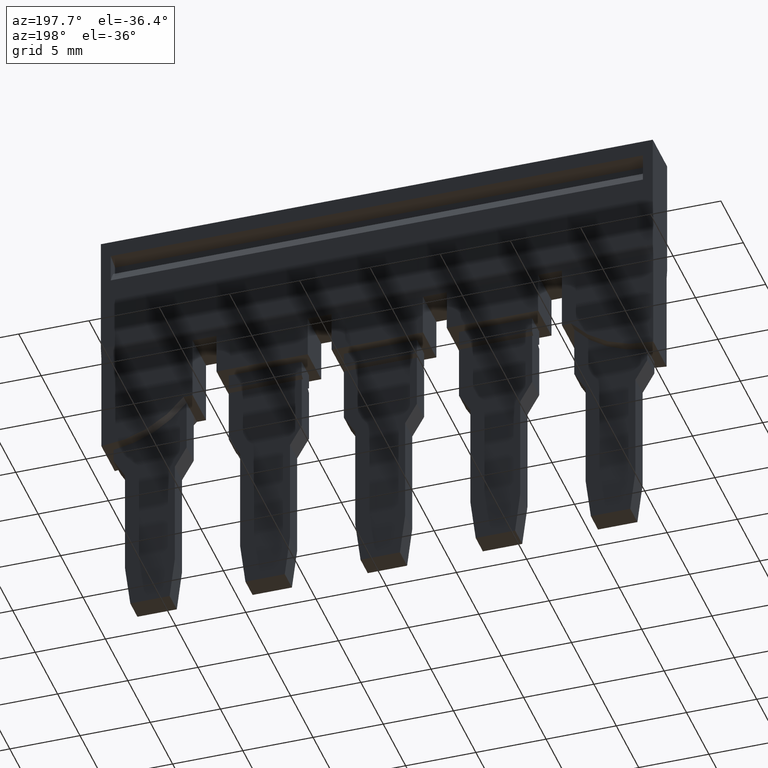
[diagram: clean part render]
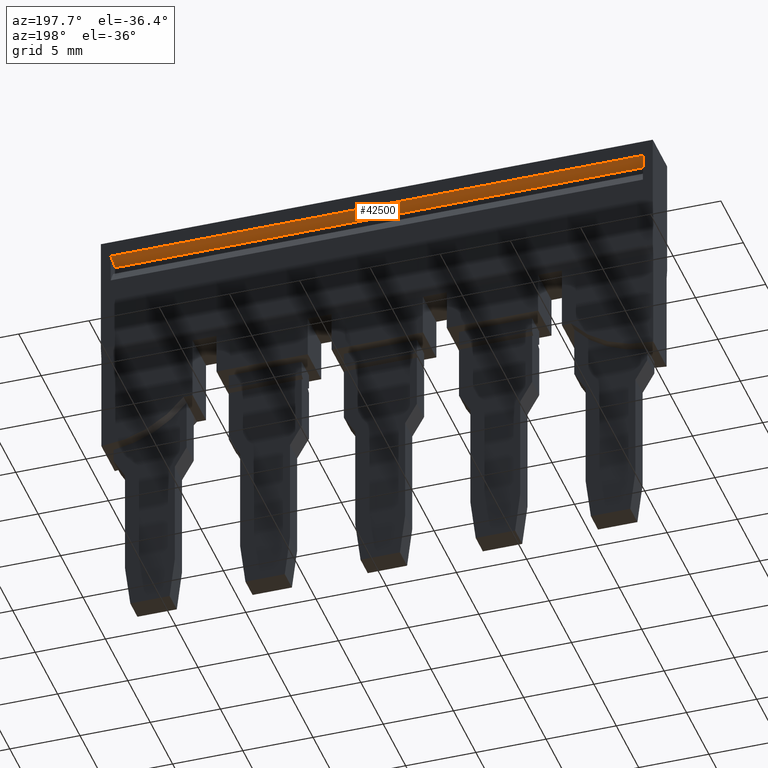
[diagram: same view with one face highlighted and labeled with its STEP entity id]
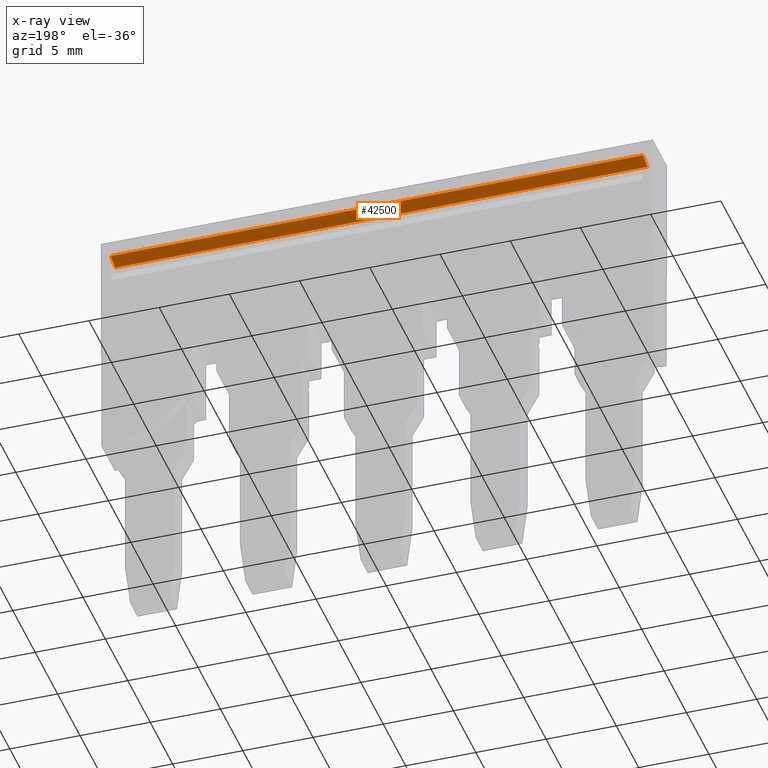
[diagram: x-ray of the same camera — body ghosted, the highlighted face saturated]
A machine part, auxiliary view. The second image highlights one B-rep face of the part: STEP entity #42500.
The next image is the same camera in x-ray: the body ghosted, the highlighted face saturated — about 0% of this face is hidden behind the body in this view.
In plain terms, the highlighted planar face has unit normal (0, -0.2588, 0.9659).
Its self-contained STEP definition (entity closure, byte-faithful):
#4350=CARTESIAN_POINT('',(2.58553886079762,-7.13383522188631,
36.3099999999988));
#4360=VERTEX_POINT('',#4350);
#4530=CARTESIAN_POINT('',(2.58553886079762,-7.13383522188632,
74.2099999999993));
#4540=VERTEX_POINT('',#4530);
#4570=CARTESIAN_POINT('',(2.58553886079762,-7.13383522188631,38.874984))
;
#4580=DIRECTION('',(3.08148791101958E-33,-1.23259516440783E-32,-1.));
#4590=VECTOR('',#4580,1.);
#4600=LINE('',#4570,#4590);
#4610=EDGE_CURVE('',#4540,#4360,#4600,.T.);
#5540=CARTESIAN_POINT('',(3.58553886079761,-7.40178441431744,
74.2099999999993));
#5550=VERTEX_POINT('',#5540);
#5720=CARTESIAN_POINT('',(3.58553886079761,-7.40178441431743,
36.3099999999988));
#5730=VERTEX_POINT('',#5720);
#5760=CARTESIAN_POINT('',(3.58553886079761,-7.40178441431743,38.874984))
;
#5770=DIRECTION('',(3.08148791101958E-33,-1.23259516440783E-32,-1.));
#5780=VECTOR('',#5770,1.);
#5790=LINE('',#5760,#5780);
#5800=EDGE_CURVE('',#5550,#5730,#5790,.T.);
#6280=CARTESIAN_POINT('',(5.78553886079761,-7.9912726376659,
36.3099999999988));
#6290=DIRECTION('',(-0.965925826289069,0.258819045102519,
-2.97648875665136E-33));
#6300=VECTOR('',#6290,1.);
#6310=LINE('',#6280,#6300);
#6320=EDGE_CURVE('',#5730,#4360,#6310,.T.);
#42230=CARTESIAN_POINT('',(5.78553886079761,-7.9912726376659,
74.2099999999993));
#42240=DIRECTION('',(0.965925826289069,-0.258819045102519,
2.97648875665136E-33));
#42250=VECTOR('',#42240,1.);
#42260=LINE('',#42230,#42250);
#42270=EDGE_CURVE('',#4540,#5550,#42260,.T.);
#42390=CARTESIAN_POINT('',(3.43730266981812,-7.36206464665542,
74.2099999999993));
#42400=DIRECTION('',(0.258819045102519,0.965925826289069,
-1.11084072679804E-32));
#42410=DIRECTION('',(-0.965925826289069,0.258819045102519,
-2.97648875665136E-33));
#42420=AXIS2_PLACEMENT_3D('',#42390,#42400,#42410);
#42430=PLANE('',#42420);
#42440=ORIENTED_EDGE('',*,*,#5800,.F.);
#42450=ORIENTED_EDGE('',*,*,#6320,.F.);
#42460=ORIENTED_EDGE('',*,*,#4610,.T.);
#42470=ORIENTED_EDGE('',*,*,#42270,.F.);
#42480=EDGE_LOOP('',(#42470,#42460,#42450,#42440));
#42490=FACE_OUTER_BOUND('',#42480,.T.);
#42500=ADVANCED_FACE('',(#42490),#42430,.F.);